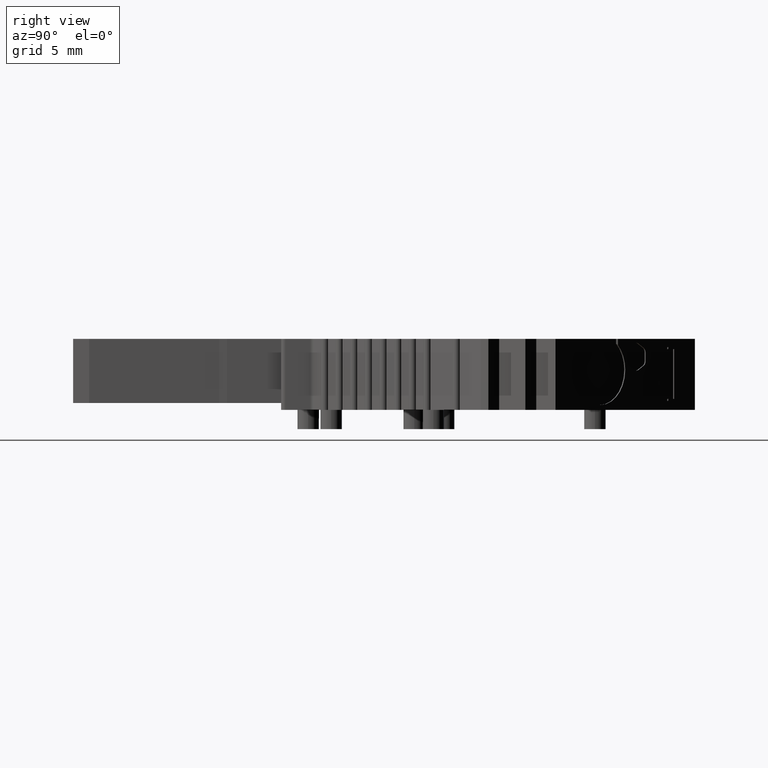
[diagram: clean part render]
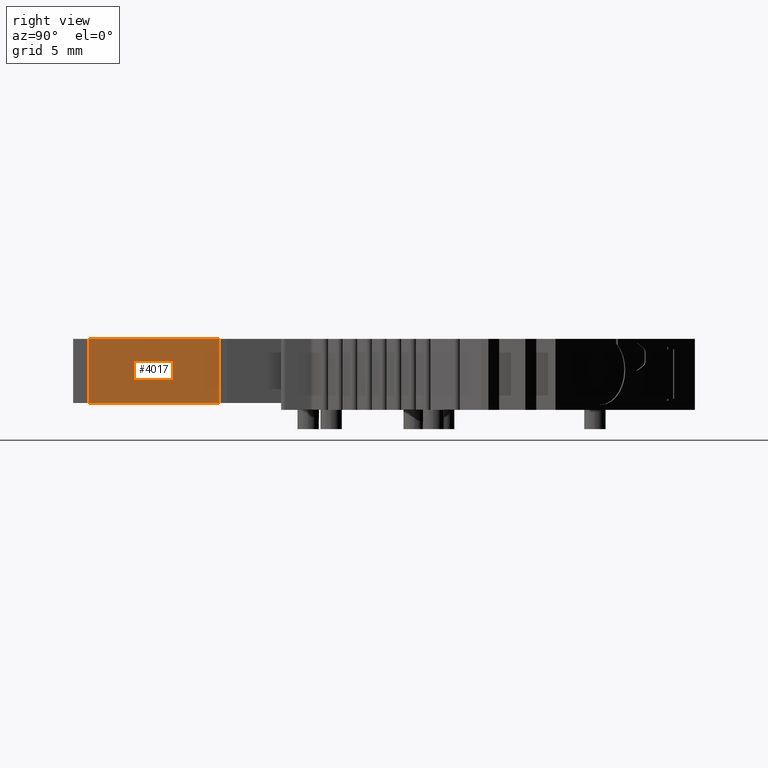
[diagram: same view with one face highlighted and labeled with its STEP entity id]
A machine part, right view. The second image highlights one B-rep face of the part: STEP entity #4017.
In plain terms, the highlighted planar face has unit normal (1, -0, 0).
Its self-contained STEP definition (entity closure, byte-faithful):
#14 = LINE ( 'NONE', #3023, #3883 ) ;
#149 = LINE ( 'NONE', #6155, #5502 ) ;
#563 = CARTESIAN_POINT ( 'NONE',  ( 3.803561589734704800, 0.0000000000000000000, 5.150000000000000400 ) ) ;
#675 = VERTEX_POINT ( 'NONE', #1174 ) ;
#680 = ORIENTED_EDGE ( 'NONE', *, *, #4748, .F. ) ;
#770 = CARTESIAN_POINT ( 'NONE',  ( 3.803561589734708400, 10.58098714324027700, 5.150000000000002100 ) ) ;
#966 = VERTEX_POINT ( 'NONE', #770 ) ;
#1139 = PLANE ( 'NONE',  #4604 ) ;
#1174 = CARTESIAN_POINT ( 'NONE',  ( 3.803561589734706100, 10.58098714324023800, 0.4999999999999997800 ) ) ;
#1663 = DIRECTION ( 'NONE',  ( 0.0000000000000000000, 0.0000000000000000000, -1.000000000000000000 ) ) ;
#2381 = CARTESIAN_POINT ( 'NONE',  ( 3.803561589734703500, 1.157132824439914400, 5.150000000000002100 ) ) ;
#2456 = DIRECTION ( 'NONE',  ( -0.0000000000000000000, -0.0000000000000000000, 1.000000000000000000 ) ) ;
#2966 = DIRECTION ( 'NONE',  ( -0.0000000000000000000, 1.000000000000000000, 0.0000000000000000000 ) ) ;
#3017 = DIRECTION ( 'NONE',  ( 0.0000000000000000000, 0.0000000000000000000, -1.000000000000000000 ) ) ;
#3023 = CARTESIAN_POINT ( 'NONE',  ( 3.803561589734704800, 10.58098714324028800, 5.049999999999999800 ) ) ;
#3077 = CARTESIAN_POINT ( 'NONE',  ( 3.803561589734704800, 1.157132824439919000, 5.049999999999999800 ) ) ;
#3135 = LINE ( 'NONE', #563, #4721 ) ;
#3184 = LINE ( 'NONE', #3077, #6090 ) ;
#3475 = VERTEX_POINT ( 'NONE', #2381 ) ;
#3493 = ORIENTED_EDGE ( 'NONE', *, *, #5995, .T. ) ;
#3543 = CARTESIAN_POINT ( 'NONE',  ( 3.803561589734704800, 15.08098707896406100, 5.049999999999999800 ) ) ;
#3807 = EDGE_CURVE ( 'NONE', #5493, #675, #149, .T. ) ;
#3883 = VECTOR ( 'NONE', #2456, 1000.000000000000000 ) ;
#3981 = EDGE_CURVE ( 'NONE', #675, #966, #14, .T. ) ;
#3985 = CARTESIAN_POINT ( 'NONE',  ( 3.803561589734710600, 1.157132824439959900, 0.4999999999999997800 ) ) ;
#4017 = ADVANCED_FACE ( 'NONE', ( #5581 ), #1139, .T. ) ;
#4041 = DIRECTION ( 'NONE',  ( 1.000000000000000000, -0.0000000000000000000, 0.0000000000000000000 ) ) ;
#4604 = AXIS2_PLACEMENT_3D ( 'NONE', #3543, #4041, #1663 ) ;
#4688 = EDGE_LOOP ( 'NONE', ( #680, #3493, #5235, #5023 ) ) ;
#4690 = DIRECTION ( 'NONE',  ( 0.0000000000000000000, 1.000000000000000000, 0.0000000000000000000 ) ) ;
#4721 = VECTOR ( 'NONE', #2966, 1000.000000000000000 ) ;
#4748 = EDGE_CURVE ( 'NONE', #3475, #966, #3135, .T. ) ;
#5023 = ORIENTED_EDGE ( 'NONE', *, *, #3981, .T. ) ;
#5235 = ORIENTED_EDGE ( 'NONE', *, *, #3807, .T. ) ;
#5493 = VERTEX_POINT ( 'NONE', #3985 ) ;
#5502 = VECTOR ( 'NONE', #4690, 1000.000000000000000 ) ;
#5581 = FACE_OUTER_BOUND ( 'NONE', #4688, .T. ) ;
#5995 = EDGE_CURVE ( 'NONE', #3475, #5493, #3184, .T. ) ;
#6090 = VECTOR ( 'NONE', #3017, 1000.000000000000000 ) ;
#6155 = CARTESIAN_POINT ( 'NONE',  ( 3.803561589734704800, 15.08098707896406100, 0.4999999999999995600 ) ) ;